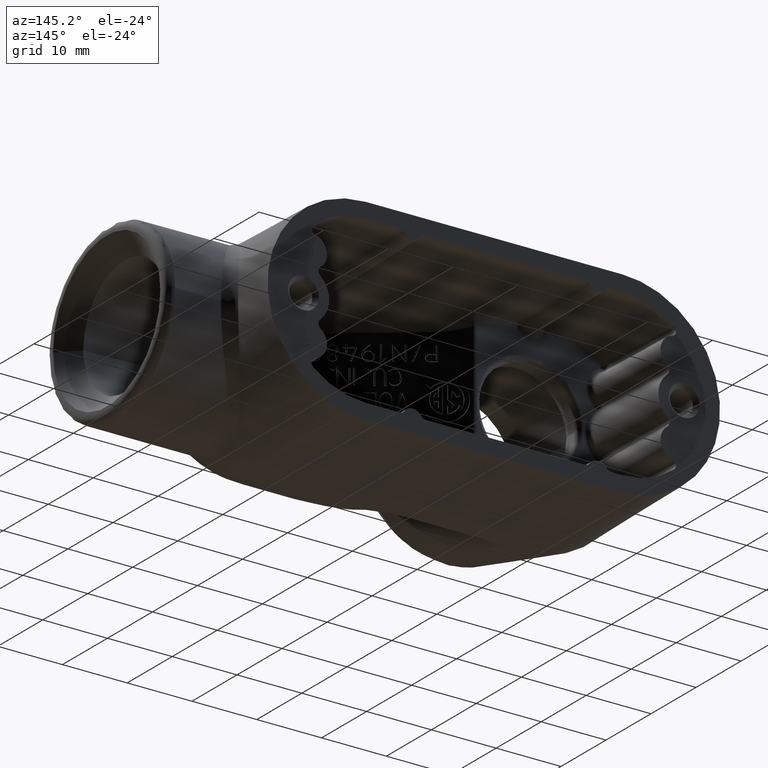
[diagram: clean part render]
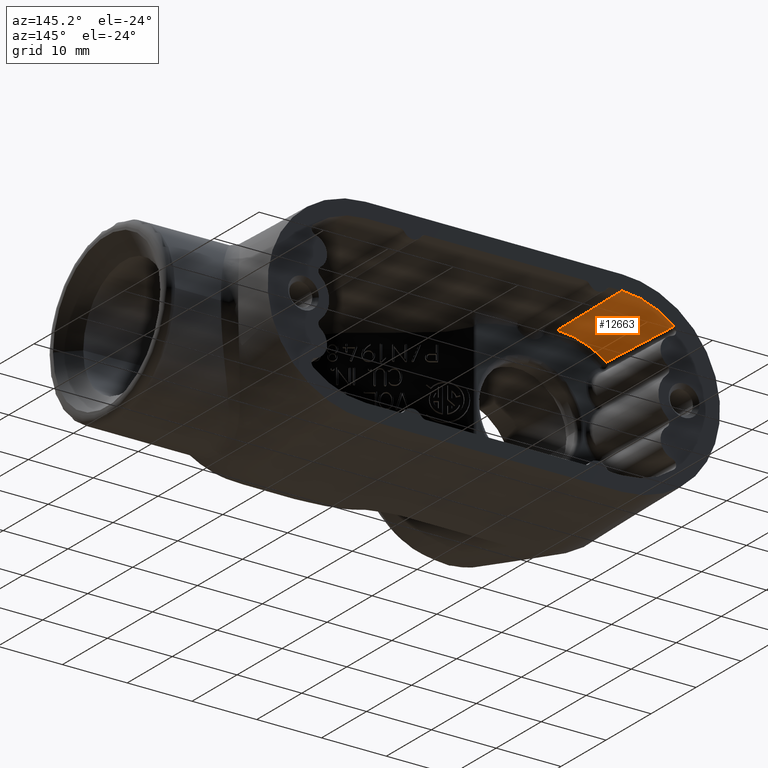
[diagram: same view with one face highlighted and labeled with its STEP entity id]
A machine part, auxiliary view. The second image highlights one B-rep face of the part: STEP entity #12663.
In plain terms, the highlighted conical surface has half-angle 1 deg.
Its self-contained STEP definition (entity closure, byte-faithful):
#76=CONICAL_SURFACE('',#13523,0.503728088112718,0.0174532925199433);
#356=CIRCLE('',#13524,0.504);
#812=FACE_OUTER_BOUND('',#1612,.T.);
#1612=EDGE_LOOP('',(#9299,#9300,#9301,#9302));
#2440=LINE('',#25954,#3170);
#3170=VECTOR('',#14556,0.393760759072404);
#4166=B_SPLINE_CURVE_WITH_KNOTS('',3,(#25946,#25947,#25948,#25949),
 .UNSPECIFIED.,.F.,.F.,(4,4),(0.0797389232847378,1.5108570790693),
 .UNSPECIFIED.);
#4167=B_SPLINE_CURVE_WITH_KNOTS('',3,(#25955,#25956,#25957,#25958),
 .UNSPECIFIED.,.F.,.F.,(4,4),(-0.930935175473943,-0.172942727205798),
 .UNSPECIFIED.);
#5401=VERTEX_POINT('',#25055);
#5435=VERTEX_POINT('',#25914);
#5436=VERTEX_POINT('',#25951);
#5437=VERTEX_POINT('',#25953);
#6920=EDGE_CURVE('',#5435,#5401,#4166,.T.);
#6921=EDGE_CURVE('',#5436,#5435,#356,.T.);
#6922=EDGE_CURVE('',#5437,#5436,#2440,.T.);
#6923=EDGE_CURVE('',#5437,#5401,#4167,.T.);
#9299=ORIENTED_EDGE('',*,*,#6920,.F.);
#9300=ORIENTED_EDGE('',*,*,#6921,.F.);
#9301=ORIENTED_EDGE('',*,*,#6922,.F.);
#9302=ORIENTED_EDGE('',*,*,#6923,.T.);
#12663=ADVANCED_FACE('',(#812),#76,.F.);
#13523=AXIS2_PLACEMENT_3D('',#25950,#14552,#14553);
#13524=AXIS2_PLACEMENT_3D('',#25952,#14554,#14555);
#14552=DIRECTION('center_axis',(0.,1.,0.));
#14553=DIRECTION('ref_axis',(0.,0.,1.));
#14554=DIRECTION('center_axis',(0.,-1.,0.));
#14555=DIRECTION('ref_axis',(0.,0.,1.));
#14556=DIRECTION('',(0.,0.999847695156391,0.0174524064372835));
#25055=CARTESIAN_POINT('',(-1.07498812217263,0.280704612298835,0.394968375340935));
#25914=CARTESIAN_POINT('',(-1.09650372953212,0.843749999540938,0.390598354207446));
#25946=CARTESIAN_POINT('Ctrl Pts',(-1.09650372952116,0.843749999542475,
0.390598354242201));
#25947=CARTESIAN_POINT('Ctrl Pts',(-1.08902733277475,0.656081825195253,
0.392468128930711));
#25948=CARTESIAN_POINT('Ctrl Pts',(-1.08189138323351,0.468397739278057,
0.393876569126279));
#25949=CARTESIAN_POINT('Ctrl Pts',(-1.07498812217263,0.280704612298835,
0.394968375340935));
#25950=CARTESIAN_POINT('Origin',(-0.777993249839094,0.828172178410644,-8.74191357972564E-17));
#25951=CARTESIAN_POINT('',(-0.777993249839094,0.84375,0.504));
#25952=CARTESIAN_POINT('Origin',(-0.777993249839094,0.84375,-8.74191357972564E-17));
#25953=CARTESIAN_POINT('',(-0.777993249910127,0.280704612298835,0.494172006200143));
#25954=CARTESIAN_POINT('',(-0.777993249839094,0.828172178410644,0.503728088112718));
#25955=CARTESIAN_POINT('Ctrl Pts',(-0.777993249912524,0.280704612298835,
0.494172006200143));
#25956=CARTESIAN_POINT('Ctrl Pts',(-0.884182110678352,0.280704612298835,
0.494172006184364));
#25957=CARTESIAN_POINT('Ctrl Pts',(-0.990085944560698,0.280704612298835,
0.458810224406679));
#25958=CARTESIAN_POINT('Ctrl Pts',(-1.07498812219943,0.280704612298835,
0.394968375320786));